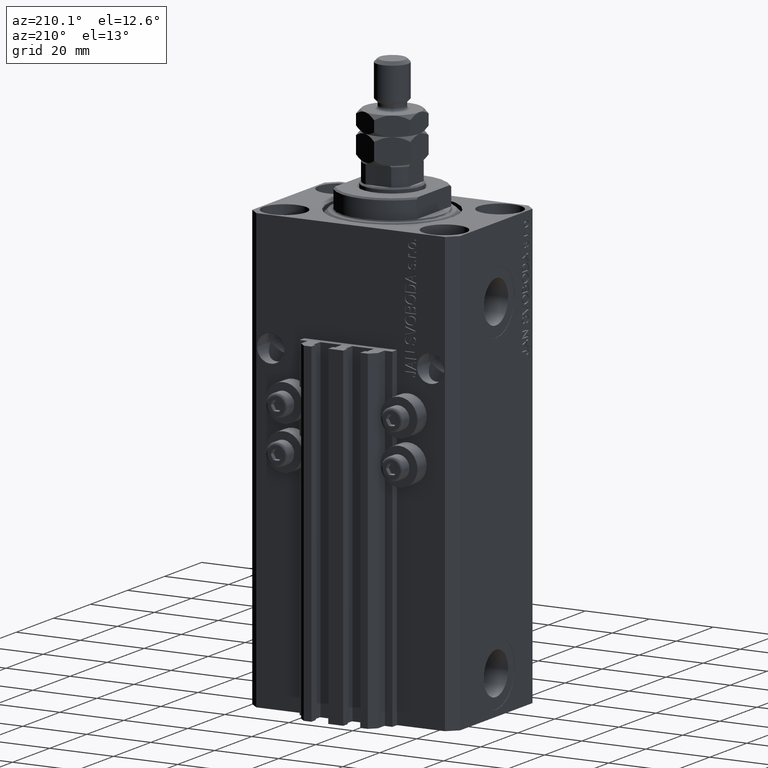
[diagram: clean part render]
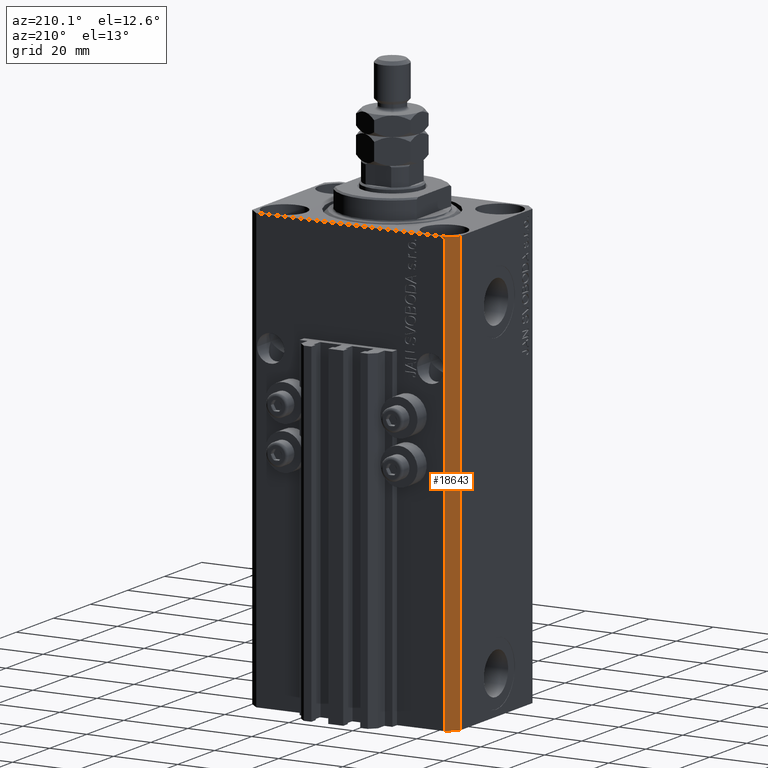
[diagram: same view with one face highlighted and labeled with its STEP entity id]
A machine part, auxiliary view. The second image highlights one B-rep face of the part: STEP entity #18643.
In plain terms, the highlighted planar face has unit normal (-0.7071, 0.7071, 0).
Its self-contained STEP definition (entity closure, byte-faithful):
#1308 = VECTOR ( 'NONE', #27786, 1000.000000000000114 ) ;
#2684 = LINE ( 'NONE', #35850, #9654 ) ;
#3644 = CARTESIAN_POINT ( 'NONE',  ( -29.49999999999650413, 22.49999999999949907, 0.000000000000000000 ) ) ;
#3878 = EDGE_LOOP ( 'NONE', ( #12224, #39621, #33789, #28911 ) ) ;
#4868 = CARTESIAN_POINT ( 'NONE',  ( -29.49999999999650413, 22.49999999999949907, 0.000000000000000000 ) ) ;
#8212 = DIRECTION ( 'NONE',  ( -0.7071067811865475727, 0.7071067811865475727, 0.000000000000000000 ) ) ;
#9654 = VECTOR ( 'NONE', #48029, 1000.000000000000114 ) ;
#10206 = DIRECTION ( 'NONE',  ( 0.000000000000000000, 0.000000000000000000, 1.000000000000000000 ) ) ;
#12186 = PLANE ( 'NONE',  #43028 ) ;
#12224 = ORIENTED_EDGE ( 'NONE', *, *, #46320, .F. ) ;
#12522 = EDGE_CURVE ( 'NONE', #23975, #27166, #40850, .T. ) ;
#13454 = LINE ( 'NONE', #17193, #42421 ) ;
#15163 = CARTESIAN_POINT ( 'NONE',  ( -29.49999999999650413, 22.49999999999949907, -137.0000000000000000 ) ) ;
#17193 = CARTESIAN_POINT ( 'NONE',  ( -32.49999999999650413, 19.49999999999949907, -137.0000000000000000 ) ) ;
#18643 = ADVANCED_FACE ( 'NONE', ( #46333 ), #12186, .T. ) ;
#19905 = CARTESIAN_POINT ( 'NONE',  ( -29.49999999999650413, 22.49999999999949907, -137.0000000000000000 ) ) ;
#23877 = CARTESIAN_POINT ( 'NONE',  ( -29.49999999999650413, 22.49999999999949907, -137.0000000000000000 ) ) ;
#23975 = VERTEX_POINT ( 'NONE', #23877 ) ;
#27166 = VERTEX_POINT ( 'NONE', #3644 ) ;
#27786 = DIRECTION ( 'NONE',  ( -0.7071067811865474617, -0.7071067811865474617, 0.000000000000000000 ) ) ;
#28911 = ORIENTED_EDGE ( 'NONE', *, *, #39625, .T. ) ;
#29210 = CARTESIAN_POINT ( 'NONE',  ( -32.49999999999650413, 19.49999999999949907, 0.000000000000000000 ) ) ;
#30889 = DIRECTION ( 'NONE',  ( -0.7071067811865474617, -0.7071067811865474617, 0.000000000000000000 ) ) ;
#32435 = EDGE_CURVE ( 'NONE', #23975, #47400, #2684, .T. ) ;
#33789 = ORIENTED_EDGE ( 'NONE', *, *, #32435, .T. ) ;
#34104 = DIRECTION ( 'NONE',  ( 0.000000000000000000, 0.000000000000000000, 1.000000000000000000 ) ) ;
#35094 = CARTESIAN_POINT ( 'NONE',  ( -32.49999999999650413, 19.49999999999949907, -137.0000000000000000 ) ) ;
#35850 = CARTESIAN_POINT ( 'NONE',  ( -29.49999999999650413, 22.49999999999949907, -137.0000000000000000 ) ) ;
#39621 = ORIENTED_EDGE ( 'NONE', *, *, #12522, .F. ) ;
#39625 = EDGE_CURVE ( 'NONE', #47400, #46771, #13454, .T. ) ;
#39726 = VECTOR ( 'NONE', #34104, 1000.000000000000000 ) ;
#40850 = LINE ( 'NONE', #15163, #39726 ) ;
#42256 = LINE ( 'NONE', #4868, #1308 ) ;
#42421 = VECTOR ( 'NONE', #10206, 1000.000000000000000 ) ;
#43028 = AXIS2_PLACEMENT_3D ( 'NONE', #19905, #8212, #30889 ) ;
#46320 = EDGE_CURVE ( 'NONE', #27166, #46771, #42256, .T. ) ;
#46333 = FACE_OUTER_BOUND ( 'NONE', #3878, .T. ) ;
#46771 = VERTEX_POINT ( 'NONE', #29210 ) ;
#47400 = VERTEX_POINT ( 'NONE', #35094 ) ;
#48029 = DIRECTION ( 'NONE',  ( -0.7071067811865474617, -0.7071067811865474617, 0.000000000000000000 ) ) ;